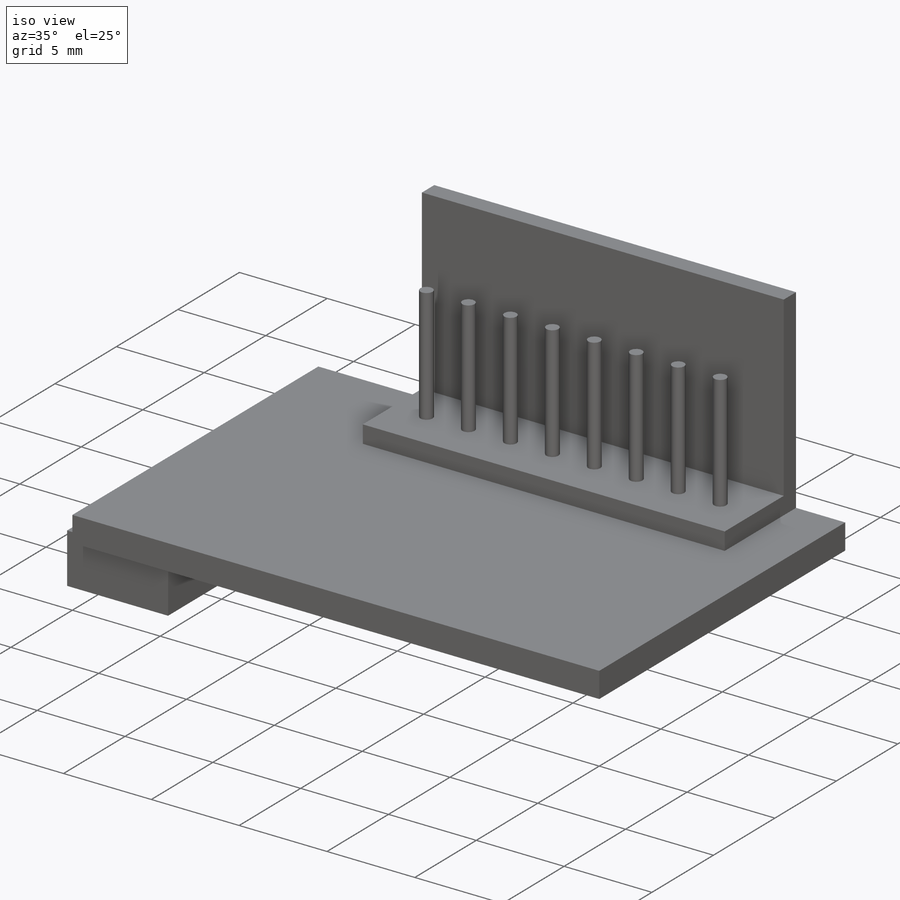
[diagram: iso view]
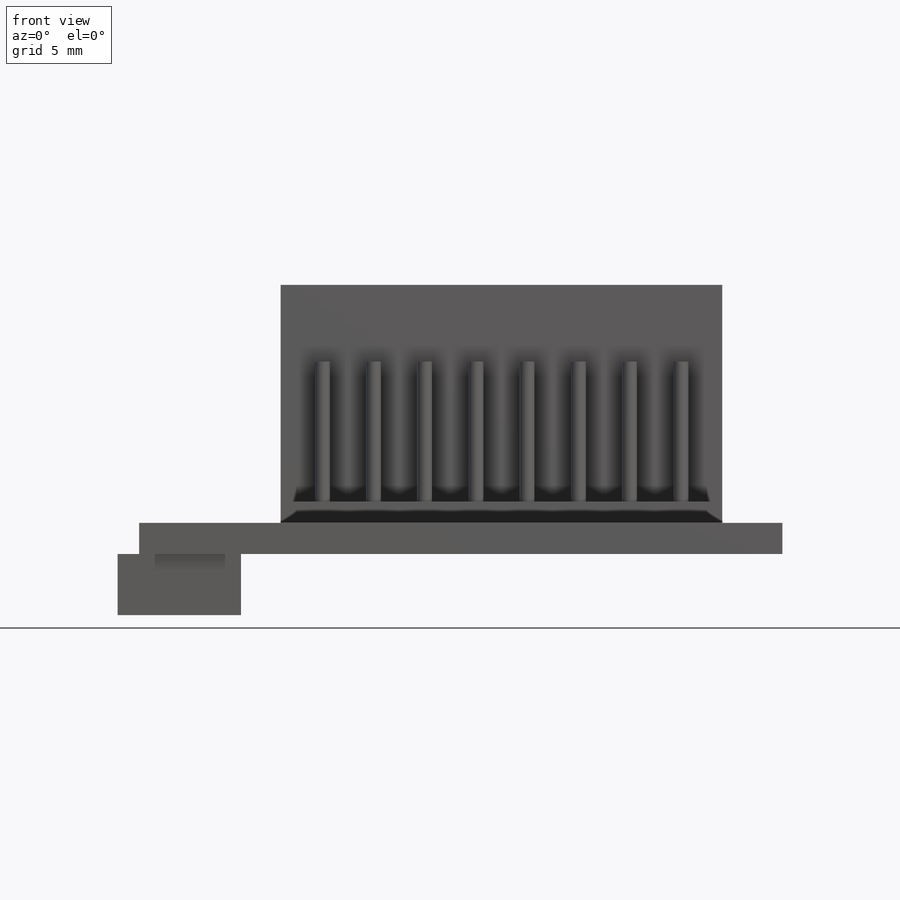
[diagram: front view]
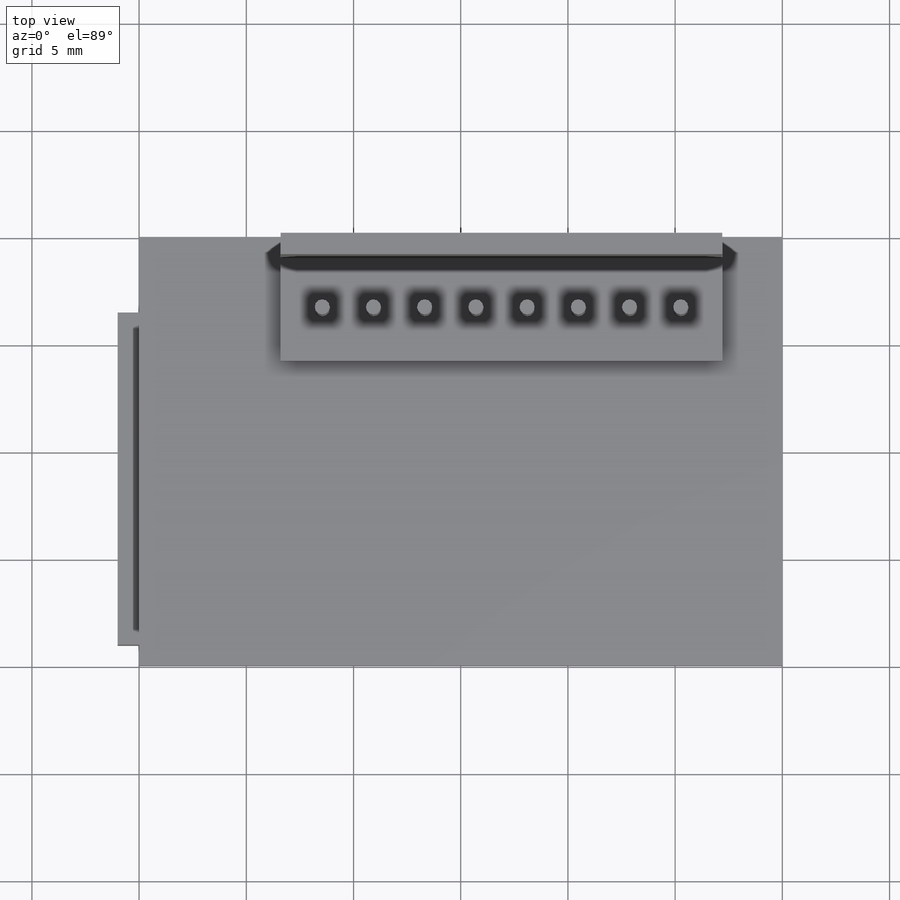
[diagram: top view]
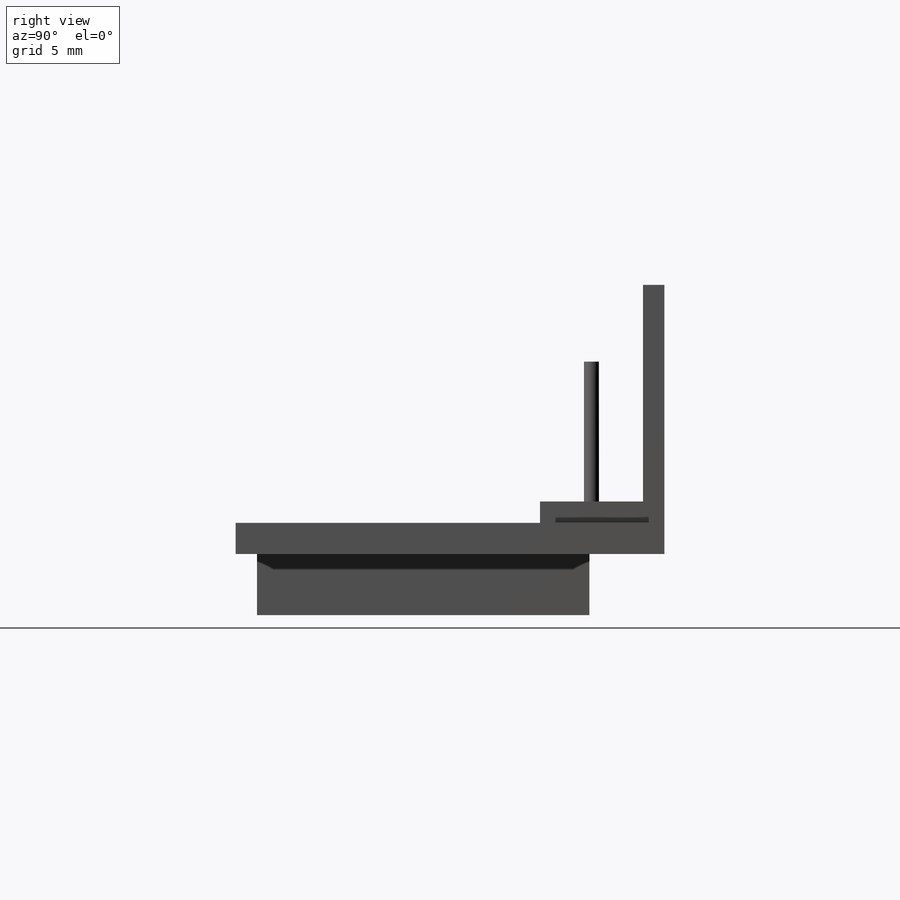
[diagram: right view]
SOLIDWORKS PART (.sldprt)
format: sldprt  version: not decoded by parser v0  size: 258,048 bytes
history: native  units: mm
features: sketch x5, extrude x4, material x1, cut_extrude x1 (+13 scaffold rows collapsed)
feature tree (24):
  scaffold x13  (default folders/planes/origin — collapsed)
  material  "Material <not specified>"
  sketch  "Sketch1"  dims[D1=30.0mm D2=20.0mm]
  extrude  "Boss-Extrude1"  Depth=1.45mm
  sketch  "Sketch2"  dims[c1.D1=3.0mm c1.D2=20.6mm c2.D1=6.6mm c2.D3=5.8mm]
  extrude  "Boss-Extrude2"  Depth=11.1mm
  sketch  "Sketch4"  dims[c1.D1=6.0mm c1.D2=15.5mm c1.D3=5.75mm c1.D4=1.0mm c2.D1=1.0mm]
  extrude  "Boss-Extrude3"  Depth=2.85mm
  sketch  "Sketch5"  dims[D1=1.0mm]
  cut_extrude  "Cut-Extrude1"  Depth=1mm
  sketch  "Sketch6"  dims[D1=0.7mm D2=8.0]
  extrude  "Boss-Extrude4"  Depth=6.52mm
decode coverage: 10 of 10 modeling features carry decoded parameters
note: suppression state not decoded; provenance and decode notes live in map.json
